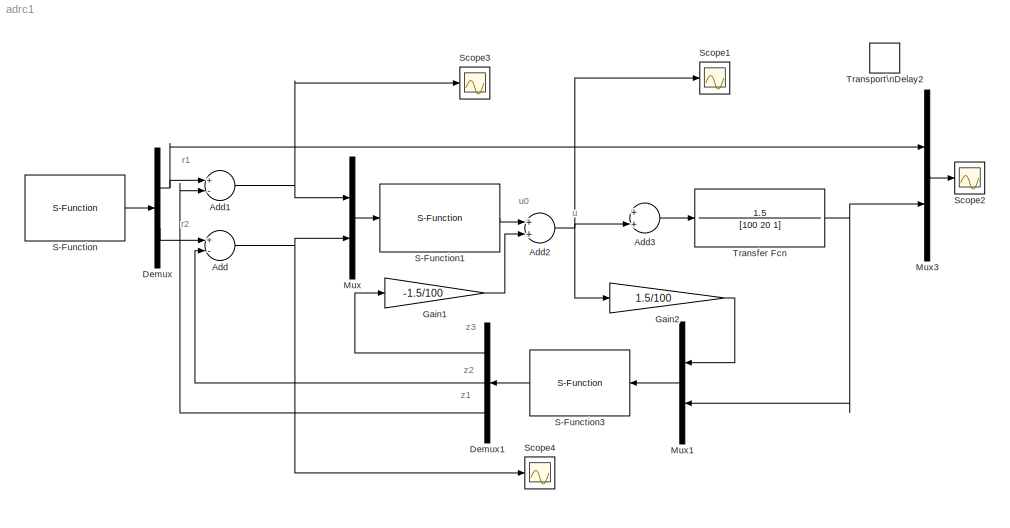
MODEL adrc1
KIND model
BLOCK [Sum] Add
  InputSameDT = off
  Inputs = +-
  OutDataTypeMode = Inherit via internal rule
  OutScaling = 2^-10
  Ports = [2, 1]
  SaturateOnIntegerOverflow = off
BLOCK [Sum] Add1
  InputSameDT = off
  Inputs = +-
  OutDataTypeMode = Inherit via internal rule
  OutScaling = 2^-10
  Ports = [2, 1]
  SaturateOnIntegerOverflow = off
BLOCK [Sum] Add2
  InputSameDT = off
  OutDataTypeMode = Inherit via internal rule
  OutScaling = 2^-10
  Ports = [2, 1]
  SaturateOnIntegerOverflow = off
BLOCK [Sum] Add3
  InputSameDT = off
  OutDataTypeMode = Inherit via internal rule
  OutScaling = 2^-10
  Ports = [2, 1]
  SaturateOnIntegerOverflow = off
BLOCK [Demux] Demux
  DisplayOption = bar
  Outputs = 2
  Ports = [1, 2]
BLOCK [Demux] Demux1
  DisplayOption = bar
  Outputs = 3
  Ports = [1, 3]
BLOCK [Gain] Gain1
  Gain = -1.5/100
  OutDataTypeMode = Inherit via internal rule
  ParameterDataTypeMode = Inherit via internal rule
  SaturateOnIntegerOverflow = off
BLOCK [Gain] Gain2
  Gain = 1.5/100
  OutDataTypeMode = Inherit via internal rule
  ParameterDataTypeMode = Inherit via internal rule
  SaturateOnIntegerOverflow = off
BLOCK [Mux] Mux
  DisplayOption = bar
  Inputs = 2
  Ports = [2, 1]
BLOCK [Mux] Mux1
  DisplayOption = bar
  Inputs = 2
  Ports = [2, 1]
BLOCK [Mux] Mux3
  DisplayOption = bar
  Inputs = 2
  Ports = [2, 1]
BLOCK [S-Function] S-Function
  FunctionName = ReferenceProcess
  MaskCallbackString = ||
  MaskEnableString = on,on,on
  MaskIconFrame = on
  MaskIconOpaque = on
  MaskIconRotate = none
  MaskIconUnits = autoscale
  MaskPromptString = SetPoint|RisingTime|SampleTime
  MaskStyleString = edit,edit,edit
  MaskTabNameString = ,,
  MaskToolTipString = on,on,on
  MaskTunableValueString = on,on,on
  MaskValueString = 1|8|0.1
  MaskVarAliasString = ,,
  MaskVariables = SetPoint=@1;RisingTime=@2;SampleTime=@3;
  MaskVisibilityString = on,on,on
  Parameters = SetPoint, RisingTime,SampleTime
  Ports = [0, 1]
BLOCK [S-Function] S-Function1
  FunctionName = NonlinearPD
  MaskCallbackString = |||||
  MaskEnableString = on,on,on,on,on,on
  MaskIconFrame = on
  MaskIconOpaque = on
  MaskIconRotate = none
  MaskIconUnits = autoscale
  MaskPromptString = Proportion Coefficient|Derivation Coefficient|Linear Region|Proportion Power|Derivation Power|Sample Time
  MaskStyleString = edit,edit,edit,edit,edit,edit
  MaskTabNameString = ,,,,,
  MaskToolTipString = on,on,on,on,on,on
  MaskTunableValueString = on,on,on,on,on,on
  MaskValueString = 150|100|0.2|3/4|3/2|0.1
  MaskVarAliasString = ,,,,,
  MaskVariables = Beta1=@1;Beta2=@2;Delta=@3;A1=@4;A2=@5;SampleTime=@6;
  MaskVisibilityString = on,on,on,on,on,on
  Parameters = Beta1,Beta2,Delta,A1,A2,SampleTime
  Ports = [1, 1]
BLOCK [S-Function] S-Function3
  FunctionName = ESO
  MaskCallbackString = ||||
  MaskEnableString = on,on,on,on,on
  MaskIconFrame = on
  MaskIconOpaque = on
  MaskIconRotate = none
  MaskIconUnits = autoscale
  MaskPromptString = Linear Region|Observer Coefficient 1|Observer Coefficient 2|Observer Coefficient 3|Sample Time
  MaskStyleString = edit,edit,edit,edit,edit
  MaskTabNameString = ,,,,
  MaskToolTipString = on,on,on,on,on
  MaskTunableValueString = on,on,on,on,on
  MaskValueString = 0.1|20|25|30|0.1
  MaskVarAliasString = ,,,,
  MaskVariables = Delta=@1;Beta1=@2;Beta2=@3;Beta3=@4;SampleTime=@5;
  MaskVisibilityString = on,on,on,on,on
  Parameters = SampleTime,Delta,Beta1,Beta2,Beta3
  Ports = [1, 1]
BLOCK [Scope] Scope1
  DataFormat = StructureWithTime
  LimitDataPoints = off
  NumInputPorts = 1
  Ports = [1]
  TimeRange = 3.16679535927733e-007
  YMax = 0.99644
  YMin = 0.996252
BLOCK [Scope] Scope2
  DataFormat = StructureWithTime
  LimitDataPoints = off
  NumInputPorts = 1
  Ports = [1]
  SaveName = ScopeData10
  TimeRange = 16.01890756302521
  YMax = 1.28157
  YMin = 0
BLOCK [Scope] Scope3
  DataFormat = StructureWithTime
  LimitDataPoints = off
  NumInputPorts = 1
  Ports = [1]
  SaveName = ScopeData1
  TimeRange = 3.16679535927733e-007
  YMax = 0.9964397232263716
  YMin = 0.9962515155865817
BLOCK [Scope] Scope4
  DataFormat = StructureWithTime
  LimitDataPoints = off
  NumInputPorts = 1
  Ports = [1]
  SaveName = ScopeData2
  TimeRange = 3.16679535927733e-007
  YMax = 0.99644
  YMin = 0.996252
BLOCK [TransferFcn] Transfer Fcn
  Denominator = [100 20  1]
  Numerator = 1.5
BLOCK [TransportDelay] Transport\nDelay2
  DelayTime = 0.2
ANNOTATION (root): r1
ANNOTATION (root): r2
ANNOTATION (root): u
ANNOTATION (root): u0
ANNOTATION (root): z1
ANNOTATION (root): z2
ANNOTATION (root): z3
NET Add1:1 -> Mux:1, Scope3:1
NET Add2:1 -> Add3:2, Gain2:1, Scope1:1
LINE Add3:1 -> Transfer Fcn:1
NET Add:1 -> Mux:2, Scope4:1
LINE Demux1:1 -> Gain1:1
LINE Demux1:2 -> Add:2
LINE Demux1:3 -> Add1:2
NET Demux:1 -> Add1:1, Mux3:1
LINE Demux:2 -> Add:1
LINE Gain1:1 -> Add2:2
LINE Gain2:1 -> Mux1:1
LINE Mux1:1 -> S-Function3:1
LINE Mux3:1 -> Scope2:1
LINE Mux:1 -> S-Function1:1
LINE S-Function1:1 -> Add2:1
LINE S-Function3:1 -> Demux1:1
LINE S-Function:1 -> Demux:1
NET Transfer Fcn:1 -> Mux1:2, Mux3:2
note: NET lines group one-source signal fan-out (src -> all destinations, sorted); 1:1 wires keep LINE
